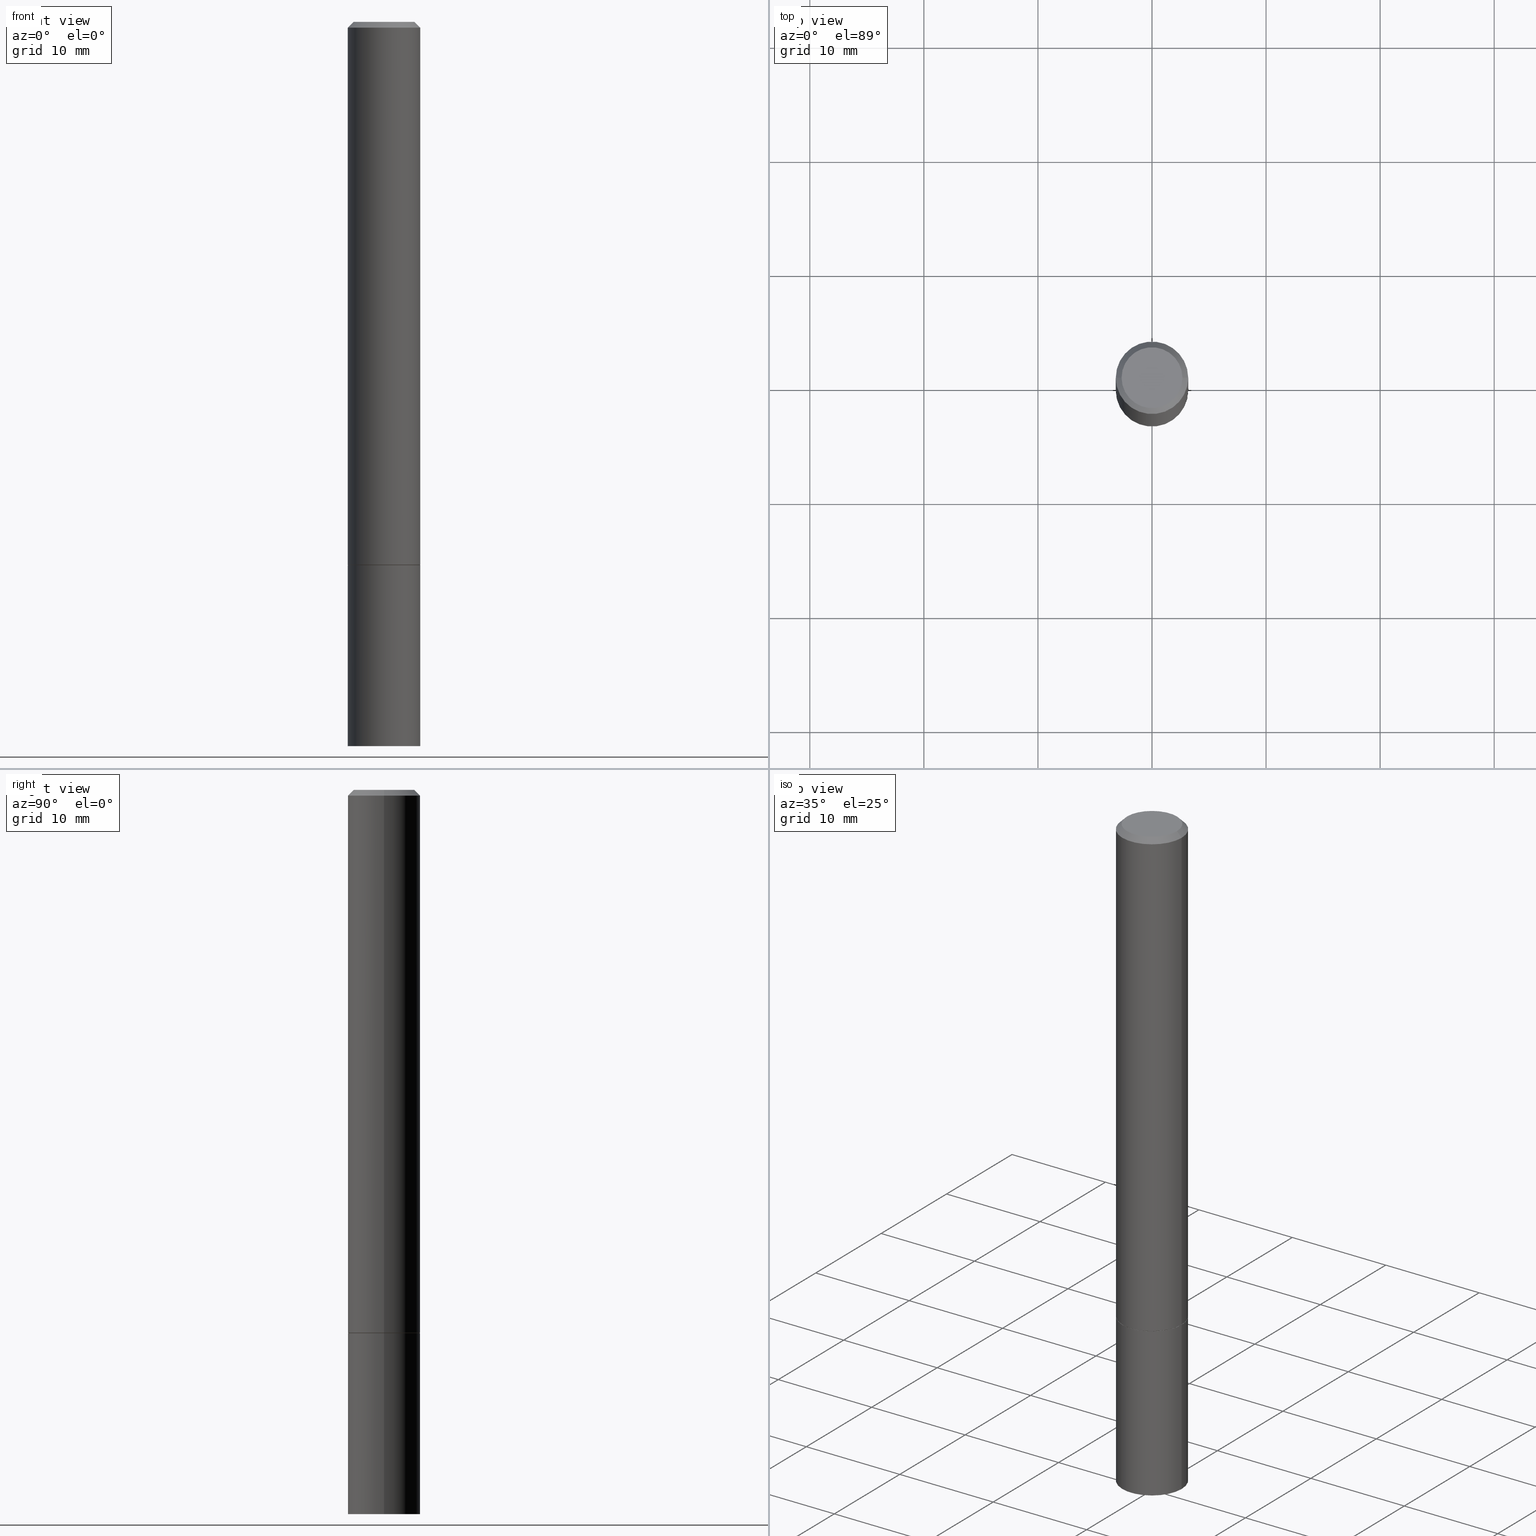
[diagram: canonical four-view strip — front | top / right | iso, engineering-drawing reading convention]
A machine part, canonical four-view strip (front | top / right | iso — engineering-drawing reading convention). The complete STEP part file that produces these views, byte-faithful:
ISO-10303-21;
HEADER;
FILE_DESCRIPTION (( 'STEP AP203' ),
    '1' );
FILE_NAME ('77101.STEP',
    '2024-02-29T13:53:45',
    ( '' ),
    ( '' ),
    'SwSTEP 2.0',
    'SolidWorks 2023',
    '' );
FILE_SCHEMA (( 'CONFIG_CONTROL_DESIGN' ));
ENDSEC;

DATA;
#1 = CC_DESIGN_DATE_AND_TIME_ASSIGNMENT ( #225, #251, ( #99 ) ) ;
#2 = CARTESIAN_POINT ( 'NONE',  ( 0.000000000000000000, 0.000000000000000000, 0.000000000000000000 ) ) ;
#3 = VECTOR ( 'NONE', #146, 39.37007874015748143 ) ;
#4 = CARTESIAN_POINT ( 'NONE',  ( 1.148236555768741665E-45, -1.639377487418492057E-31, -4.695363739110452099E-17 ) ) ;
#5 = CARTESIAN_POINT ( 'NONE',  ( 0.1250000000000000278, -9.601573681818648281E-15, -2.500000000000000000 ) ) ;
#6 = CYLINDRICAL_SURFACE ( 'NONE', #139, 0.1250000000000000278 ) ;
#7 = VECTOR ( 'NONE', #194, 39.37007874015748854 ) ;
#8 = CONICAL_SURFACE ( 'NONE', #178, 0.1249999999999998335, 0.7853981633974459475 ) ;
#9 = CARTESIAN_POINT ( 'NONE',  ( -0.1249999999999998335, 8.030407079339190545E-16, -0.02000000000000006287 ) ) ;
#10 = DIRECTION ( 'NONE',  ( 2.445468806185136597E-29, -3.491481338843145583E-15, -1.000000000000000000 ) ) ;
#11 = DIRECTION ( 'NONE',  ( -2.445468806185136597E-29, 3.491481338843145583E-15, 1.000000000000000000 ) ) ;
#12 = EDGE_CURVE ( 'NONE', #104, #329, #195, .T. ) ;
#13 = DATE_AND_TIME ( #244, #208 ) ;
#14 = ORIENTED_EDGE ( 'NONE', *, *, #162, .T. ) ;
#15 = DIRECTION ( 'NONE',  ( 1.000000000000000000, 0.000000000000000000, 0.000000000000000000 ) ) ;
#16 = ORIENTED_EDGE ( 'NONE', *, *, #135, .F. ) ;
#17 = EDGE_LOOP ( 'NONE', ( #213, #16 ) ) ;
#18 = AXIS2_PLACEMENT_3D ( 'NONE', #107, #227, #366 ) ;
#19 = PERSON_AND_ORGANIZATION ( #73, #241 ) ;
#20 = ORIENTED_EDGE ( 'NONE', *, *, #23, .T. ) ;
#21 =( CONVERSION_BASED_UNIT ( 'INCH', #180 ) LENGTH_UNIT ( ) NAMED_UNIT ( #342 ) );
#22 = CARTESIAN_POINT ( 'NONE',  ( 4.890937612370288923E-31, -6.982962677686312563E-17, -0.02000000000000006287 ) ) ;
#23 = EDGE_CURVE ( 'NONE', #329, #104, #171, .T. ) ;
#24 = AXIS2_PLACEMENT_3D ( 'NONE', #340, #56, #61 ) ;
#25 = CONICAL_SURFACE ( 'NONE', #48, 0.1240000000000000269, 0.7853981633974141952 ) ;
#26 = CARTESIAN_POINT ( 'NONE',  ( 8.728703347108292900E-16, 0.1249999999999934913, -1.875000000000000666 ) ) ;
#27 = ORIENTED_EDGE ( 'NONE', *, *, #354, .F. ) ;
#28 = DIRECTION ( 'NONE',  ( -2.445468806185136597E-29, 3.491481338843145583E-15, 1.000000000000000000 ) ) ;
#29 = CARTESIAN_POINT ( 'NONE',  ( 0.1249999999999998335, -9.273918764983033630E-16, -0.02000000000000006287 ) ) ;
#30 = LOCAL_TIME ( 8, 53, 45.00000000000000000, #273 ) ;
#31 = CARTESIAN_POINT ( 'NONE',  ( 0.1250000000000000278, -7.419397845041682046E-15, -1.875000000000000000 ) ) ;
#32 = DIRECTION ( 'NONE',  ( -1.000000000000000000, 6.982962677686266711E-15, 0.000000000000000000 ) ) ;
#33 = APPROVAL ( #338, 'UNSPECIFIED' ) ;
#34 = FACE_OUTER_BOUND ( 'NONE', #186, .T. ) ;
#35 = AXIS2_PLACEMENT_3D ( 'NONE', #151, #101, #15 ) ;
#36 = CC_DESIGN_APPROVAL ( #33, ( #99 ) ) ;
#37 = DIRECTION ( 'NONE',  ( -2.445468806185136597E-29, 3.491481338843145583E-15, 1.000000000000000000 ) ) ;
#38 = CARTESIAN_POINT ( 'NONE',  ( 0.1250000000000000278, -8.728703347107836346E-16, 6.095220969744921142E-30 ) ) ;
#39 = APPROVAL_ROLE ( '' ) ;
#40 = VERTEX_POINT ( 'NONE', #161 ) ;
#41 = VECTOR ( 'NONE', #333, 39.37007874015748143 ) ;
#42 = APPLICATION_PROTOCOL_DEFINITION ( 'international standard', 'config_control_design', 1994, #236 ) ;
#43 = ORIENTED_EDGE ( 'NONE', *, *, #248, .F. ) ;
#44 = APPROVAL_STATUS ( 'not_yet_approved' ) ;
#45 = EDGE_CURVE ( 'NONE', #124, #97, #358, .T. ) ;
#46 = EDGE_LOOP ( 'NONE', ( #257, #58, #207, #302 ) ) ;
#47 = AXIS2_PLACEMENT_3D ( 'NONE', #281, #28, #219 ) ;
#48 = AXIS2_PLACEMENT_3D ( 'NONE', #145, #64, #66 ) ;
#49 = DATE_AND_TIME ( #209, #328 ) ;
#50 = ORIENTED_EDGE ( 'NONE', *, *, #248, .T. ) ;
#51 = ADVANCED_FACE ( 'NONE', ( #137 ), #159, .F. ) ;
#52 = CARTESIAN_POINT ( 'NONE',  ( 4.582808542790945516E-29, -6.543036028992054911E-15, -1.874000000000000110 ) ) ;
#53 = MANIFOLD_SOLID_BREP ( 'Body-Move/Copy2[2]', #85 ) ;
#54 = APPROVAL_ROLE ( '' ) ;
#55 = MANIFOLD_SOLID_BREP ( 'Body-Move/Copy2[1]', #341 ) ;
#56 = DIRECTION ( 'NONE',  ( -2.445468806185136597E-29, 3.491481338843145583E-15, 1.000000000000000000 ) ) ;
#57 = PRODUCT_DEFINITION_FORMATION_WITH_SPECIFIED_SOURCE ( 'ANY', '', #229, .NOT_KNOWN. ) ;
#58 = ORIENTED_EDGE ( 'NONE', *, *, #74, .T. ) ;
#59 = EDGE_CURVE ( 'NONE', #97, #124, #200, .T. ) ;
#60 = DIRECTION ( 'NONE',  ( -2.445468806185136597E-29, 3.491481338843145583E-15, 1.000000000000000000 ) ) ;
#61 = DIRECTION ( 'NONE',  ( 1.000000000000000000, -6.982962677686269077E-15, 0.000000000000000000 ) ) ;
#62 = LINE ( 'NONE', #38, #347 ) ;
#63 = APPROVAL ( #44, 'UNSPECIFIED' ) ;
#64 = DIRECTION ( 'NONE',  ( -2.445468806185136597E-29, 3.491481338843145583E-15, 1.000000000000000000 ) ) ;
#65 = DIRECTION ( 'NONE',  ( 1.000000000000000000, -6.982962677686269077E-15, 0.000000000000000000 ) ) ;
#66 = DIRECTION ( 'NONE',  ( 1.000000000000000000, -6.982962677686269077E-15, 0.000000000000000000 ) ) ;
#67 = CIRCLE ( 'NONE', #214, 0.1250000000000000278 ) ;
#68 = CC_DESIGN_PERSON_AND_ORGANIZATION_ASSIGNMENT ( #71, #136, ( #99 ) ) ;
#69 = DIRECTION ( 'NONE',  ( 1.000000000000000000, -6.982962677686266711E-15, 4.876176775795935793E-29 ) ) ;
#70 = PERSON_AND_ORGANIZATION_ROLE ( 'design_supplier' ) ;
#71 = PERSON_AND_ORGANIZATION ( #73, #241 ) ;
#72 = EDGE_LOOP ( 'NONE', ( #20, #274 ) ) ;
#73 = PERSON ( 'UNSPECIFIED', 'UNSPECIFIED', 'UNSPECIFIED', ('UNSPECIFIED'), ('UNSPECIFIED'), ('UNSPECIFIED') ) ;
#74 = EDGE_CURVE ( 'NONE', #177, #182, #297, .T. ) ;
#75 = ORIENTED_EDGE ( 'NONE', *, *, #203, .T. ) ;
#76 = DIRECTION ( 'NONE',  ( -1.000000000000000000, 6.982962677686266711E-15, 0.000000000000000000 ) ) ;
#77 = ORIENTED_EDGE ( 'NONE', *, *, #140, .F. ) ;
#78 = ORIENTED_EDGE ( 'NONE', *, *, #59, .T. ) ;
#79 = ADVANCED_FACE ( 'NONE', ( #189 ), #309, .F. ) ;
#80 = CIRCLE ( 'NONE', #24, 0.1250000000000000278 ) ;
#81 = APPROVAL_PERSON_ORGANIZATION ( #217, #33, #54 ) ;
#82 = ORIENTED_EDGE ( 'NONE', *, *, #239, .F. ) ;
#83 = CARTESIAN_POINT ( 'NONE',  ( -0.1240000000000000269, -5.660156063640151292E-15, -1.875000000000000000 ) ) ;
#84 = ORIENTED_EDGE ( 'NONE', *, *, #344, .F. ) ;
#85 = CLOSED_SHELL ( 'NONE', ( #221, #259, #320, #359, #349, #299, #51, #292 ) ) ;
#86 = CARTESIAN_POINT ( 'NONE',  ( 0.1049999999999998990, -8.238720831321568755E-16, -4.695363739109907908E-17 ) ) ;
#87 = DIRECTION ( 'NONE',  ( 1.000000000000000000, -6.982962677686269077E-15, 0.000000000000000000 ) ) ;
#88 = ORIENTED_EDGE ( 'NONE', *, *, #74, .F. ) ;
#89 = DIRECTION ( 'NONE',  ( 1.000000000000000000, -6.982962677686269077E-15, 0.000000000000000000 ) ) ;
#90 = FACE_OUTER_BOUND ( 'NONE', #72, .T. ) ;
#91 = LINE ( 'NONE', #118, #266 ) ;
#92 = EDGE_CURVE ( 'NONE', #40, #356, #312, .T. ) ;
#93 = CARTESIAN_POINT ( 'NONE',  ( 0.000000000000000000, 0.000000000000000000, 0.000000000000000000 ) ) ;
#94 = APPROVAL_DATE_TIME ( #49, #216 ) ;
#95 = CC_DESIGN_PERSON_AND_ORGANIZATION_ASSIGNMENT ( #240, #70, ( #57 ) ) ;
#96 = APPROVAL_ROLE ( '' ) ;
#97 = VERTEX_POINT ( 'NONE', #308 ) ;
#98 = AXIS2_PLACEMENT_3D ( 'NONE', #2, #134, #111 ) ;
#99 = SECURITY_CLASSIFICATION ( '', '', #147 ) ;
#100 = ORIENTED_EDGE ( 'NONE', *, *, #272, .T. ) ;
#101 = DIRECTION ( 'NONE',  ( 0.000000000000000000, 0.000000000000000000, 1.000000000000000000 ) ) ;
#102 = ORIENTED_EDGE ( 'NONE', *, *, #310, .T. ) ;
#103 = CALENDAR_DATE ( 2024, 29, 2 ) ;
#104 = VERTEX_POINT ( 'NONE', #86 ) ;
#105 = CYLINDRICAL_SURFACE ( 'NONE', #98, 0.1250000000000000278 ) ;
#106 = CALENDAR_DATE ( 2024, 29, 2 ) ;
#107 = CARTESIAN_POINT ( 'NONE',  ( 4.585254011597131119E-29, -6.546527510330898707E-15, -1.875000000000000000 ) ) ;
#108 = DIRECTION ( 'NONE',  ( -1.000000000000000000, 6.982962677686265922E-15, -4.876176775795935793E-29 ) ) ;
#109 = CONICAL_SURFACE ( 'NONE', #322, 0.1240000000000000269, 0.7853981633974141952 ) ;
#110 = SHAPE_DEFINITION_REPRESENTATION ( #270, #197 ) ;
#111 = DIRECTION ( 'NONE',  ( 1.000000000000000000, -6.982962677686267499E-15, 4.876176775795935793E-29 ) ) ;
#112 = CARTESIAN_POINT ( 'NONE',  ( 1.148236555768741665E-45, -1.639377487418492057E-31, -4.695363739110452099E-17 ) ) ;
#113 = CARTESIAN_POINT ( 'NONE',  ( 4.585254011597131119E-29, -6.546527510330898707E-15, -1.875000000000000000 ) ) ;
#114 = CARTESIAN_POINT ( 'NONE',  ( -0.1049999999999998990, 7.681258945454880957E-16, -4.695363739110977184E-17 ) ) ;
#115 = AXIS2_PLACEMENT_3D ( 'NONE', #22, #132, #337 ) ;
#116 = CARTESIAN_POINT ( 'NONE',  ( 0.1249999999999998335, -9.273918764983033630E-16, -0.02000000000000006287 ) ) ;
#117 = FACE_OUTER_BOUND ( 'NONE', #238, .T. ) ;
#118 = CARTESIAN_POINT ( 'NONE',  ( -0.1249999999999999306, 8.881784197001247393E-16, -6.148668862818628724E-30 ) ) ;
#119 = CIRCLE ( 'NONE', #357, 0.1250000000000000278 ) ;
#120 = ORIENTED_EDGE ( 'NONE', *, *, #92, .T. ) ;
#121 = EDGE_CURVE ( 'NONE', #242, #40, #80, .T. ) ;
#122 = ORIENTED_EDGE ( 'NONE', *, *, #135, .T. ) ;
#123 = APPROVAL_DATE_TIME ( #296, #63 ) ;
#124 = VERTEX_POINT ( 'NONE', #138 ) ;
#125 = CC_DESIGN_APPROVAL ( #216, ( #126 ) ) ;
#126 = PRODUCT_DEFINITION ( 'UNKNOWN', '', #57, #185 ) ;
#127 = APPLICATION_PROTOCOL_DEFINITION ( 'international standard', 'config_control_design', 1994, #261 ) ;
#128 = ORIENTED_EDGE ( 'NONE', *, *, #253, .F. ) ;
#129 = CARTESIAN_POINT ( 'NONE',  ( 0.1249999999999999306, -8.728703347107828458E-16, 6.095220969744916238E-30 ) ) ;
#130 = ORIENTED_EDGE ( 'NONE', *, *, #310, .F. ) ;
#131 = COORDINATED_UNIVERSAL_TIME_OFFSET ( 5, 0, .BEHIND. ) ;
#132 = DIRECTION ( 'NONE',  ( -2.445468806185136597E-29, 3.491481338843145583E-15, 1.000000000000000000 ) ) ;
#133 = AXIS2_PLACEMENT_3D ( 'NONE', #315, #353, #196 ) ;
#134 = DIRECTION ( 'NONE',  ( -2.445468806185136597E-29, 3.491481338843145583E-15, 1.000000000000000000 ) ) ;
#135 = EDGE_CURVE ( 'NONE', #40, #242, #287, .T. ) ;
#136 = PERSON_AND_ORGANIZATION_ROLE ( 'classification_officer' ) ;
#137 = FACE_OUTER_BOUND ( 'NONE', #268, .T. ) ;
#138 = CARTESIAN_POINT ( 'NONE',  ( 0.1250000000000000278, -7.415906363702839039E-15, -1.874000000000000110 ) ) ;
#139 = AXIS2_PLACEMENT_3D ( 'NONE', #265, #169, #264 ) ;
#140 = EDGE_CURVE ( 'NONE', #336, #181, #311, .T. ) ;
#141 = CARTESIAN_POINT ( 'NONE',  ( 8.728703347108445741E-16, 0.1249999999999913125, -2.500000000000000444 ) ) ;
#142 = LINE ( 'NONE', #290, #3 ) ;
#143 = DIRECTION ( 'NONE',  ( -2.445468806185136597E-29, 3.491481338843145583E-15, 1.000000000000000000 ) ) ;
#144 = FACE_OUTER_BOUND ( 'NONE', #271, .T. ) ;
#145 = CARTESIAN_POINT ( 'NONE',  ( 4.585254011597131119E-29, -6.546527510330898707E-15, -1.875000000000000000 ) ) ;
#146 = DIRECTION ( 'NONE',  ( -0.7071067811865459074, 2.468850131082239706E-15, -0.7071067811865492381 ) ) ;
#147 = SECURITY_CLASSIFICATION_LEVEL ( 'unclassified' ) ;
#148 = VECTOR ( 'NONE', #222, 39.37007874015748143 ) ;
#149 = ORIENTED_EDGE ( 'NONE', *, *, #210, .F. ) ;
#150 = APPROVAL_PERSON_ORGANIZATION ( #298, #216, #96 ) ;
#151 = CARTESIAN_POINT ( 'NONE',  ( 0.000000000000000000, 0.000000000000000000, 0.000000000000000000 ) ) ;
#152 = EDGE_LOOP ( 'NONE', ( #100, #75, #276, #82 ) ) ;
#153 = CC_DESIGN_DATE_AND_TIME_ASSIGNMENT ( #13, #362, ( #126 ) ) ;
#154 = DIRECTION ( 'NONE',  ( 2.445468806185136597E-29, -3.491481338843145583E-15, -1.000000000000000000 ) ) ;
#155 = ORIENTED_EDGE ( 'NONE', *, *, #354, .T. ) ;
#156 = VECTOR ( 'NONE', #174, 39.37007874015748854 ) ;
#157 = PERSON_AND_ORGANIZATION ( #73, #241 ) ;
#158 = ORIENTED_EDGE ( 'NONE', *, *, #92, .F. ) ;
#159 = PLANE ( 'NONE',  #250 ) ;
#160 = DATE_AND_TIME ( #106, #202 ) ;
#161 = CARTESIAN_POINT ( 'NONE',  ( -0.1250000000000000278, -6.749437009019256592E-15, -2.500000000000000000 ) ) ;
#162 = EDGE_CURVE ( 'NONE', #205, #356, #119, .T. ) ;
#163 = DIRECTION ( 'NONE',  ( 1.000000000000000000, -6.982962677686269077E-15, 0.000000000000000000 ) ) ;
#164 = APPROVAL_DATE_TIME ( #160, #33 ) ;
#165 = DIRECTION ( 'NONE',  ( 1.000000000000000000, -6.982962677686266711E-15, 4.874400871621243260E-29 ) ) ;
#166 = DIRECTION ( 'NONE',  ( 2.438088387897960049E-29, -3.491481338843145188E-15, -1.000000000000000000 ) ) ;
#167 = DIRECTION ( 'NONE',  ( -2.445468806185136877E-29, 3.491481338843145188E-15, 1.000000000000000000 ) ) ;
#168 = CARTESIAN_POINT ( 'NONE',  ( 0.1240000000000000269, -7.412414882363996032E-15, -1.875000000000000000 ) ) ;
#169 = DIRECTION ( 'NONE',  ( -2.445468806185136597E-29, 3.491481338843145583E-15, 1.000000000000000000 ) ) ;
#170 = ADVANCED_FACE ( 'NONE', ( #249 ), #105, .T. ) ;
#171 = CIRCLE ( 'NONE', #183, 0.1049999999999998990 ) ;
#172 = DIRECTION ( 'NONE',  ( -1.000000000000000000, 6.982962677686265922E-15, -4.876176775795935793E-29 ) ) ;
#173 = AXIS2_PLACEMENT_3D ( 'NONE', #269, #154, #76 ) ;
#174 = DIRECTION ( 'NONE',  ( 0.7071067811865232589, -2.468850131082003836E-15, 0.7071067811865715536 ) ) ;
#175 =( NAMED_UNIT ( * ) PLANE_ANGLE_UNIT ( ) SI_UNIT ( $, .RADIAN. ) );
#176 = PERSON_AND_ORGANIZATION_ROLE ( 'creator' ) ;
#177 = VERTEX_POINT ( 'NONE', #83 ) ;
#178 = AXIS2_PLACEMENT_3D ( 'NONE', #289, #10, #32 ) ;
#179 = PERSON_AND_ORGANIZATION_ROLE ( 'design_owner' ) ;
#180 = LENGTH_MEASURE_WITH_UNIT ( LENGTH_MEASURE( 0.02539999999999999897 ), #235 );
#181 = VERTEX_POINT ( 'NONE', #29 ) ;
#182 = VERTEX_POINT ( 'NONE', #226 ) ;
#183 = AXIS2_PLACEMENT_3D ( 'NONE', #112, #60, #165 ) ;
#184 = LOCAL_TIME ( 8, 53, 45.00000000000000000, #131 ) ;
#185 = DESIGN_CONTEXT ( 'detailed design', #261, 'design' ) ;
#186 = EDGE_LOOP ( 'NONE', ( #158, #122, #102, #149 ) ) ;
#187 = CC_DESIGN_PERSON_AND_ORGANIZATION_ASSIGNMENT ( #330, #176, ( #126 ) ) ;
#188 = DIRECTION ( 'NONE',  ( -2.445468806185136597E-29, 3.491481338843145583E-15, 1.000000000000000000 ) ) ;
#189 = FACE_OUTER_BOUND ( 'NONE', #325, .T. ) ;
#190 = AXIS2_PLACEMENT_3D ( 'NONE', #26, #166, #108 ) ;
#191 = DIRECTION ( 'NONE',  ( 1.000000000000000000, -6.982962677686265922E-15, 4.876176775795935793E-29 ) ) ;
#192 = ADVANCED_FACE ( 'NONE', ( #343 ), #193, .T. ) ;
#193 = PLANE ( 'NONE',  #223 ) ;
#194 = DIRECTION ( 'NONE',  ( -0.7071067811865232589, 7.493145998870265808E-15, 0.7071067811865715536 ) ) ;
#195 = CIRCLE ( 'NONE', #316, 0.1049999999999998990 ) ;
#196 = DIRECTION ( 'NONE',  ( -1.000000000000000000, 6.982962677686265922E-15, -4.876176775795935793E-29 ) ) ;
#197 = ADVANCED_BREP_SHAPE_REPRESENTATION ( '77101', ( #55, #53, #35 ), #293 ) ;
#198 = FACE_OUTER_BOUND ( 'NONE', #152, .T. ) ;
#199 = CARTESIAN_POINT ( 'NONE',  ( 4.890937612370288923E-31, -6.982962677686312563E-17, -0.02000000000000006287 ) ) ;
#200 = CIRCLE ( 'NONE', #47, 0.1250000000000000278 ) ;
#201 = DIRECTION ( 'NONE',  ( -2.445468806185136597E-29, 3.491481338843145583E-15, 1.000000000000000000 ) ) ;
#202 = LOCAL_TIME ( 8, 53, 45.00000000000000000, #307 ) ;
#203 = EDGE_CURVE ( 'NONE', #177, #97, #346, .T. ) ;
#204 = PERSON_AND_ORGANIZATION_ROLE ( 'creator' ) ;
#205 = VERTEX_POINT ( 'NONE', #31 ) ;
#206 = APPROVAL_STATUS ( 'not_yet_approved' ) ;
#207 = ORIENTED_EDGE ( 'NONE', *, *, #239, .T. ) ;
#208 = LOCAL_TIME ( 8, 53, 45.00000000000000000, #304 ) ;
#209 = CALENDAR_DATE ( 2024, 29, 2 ) ;
#210 = EDGE_CURVE ( 'NONE', #356, #205, #67, .T. ) ;
#211 = EDGE_LOOP ( 'NONE', ( #84, #300, #50, #365 ) ) ;
#212 = ORIENTED_EDGE ( 'NONE', *, *, #210, .T. ) ;
#213 = ORIENTED_EDGE ( 'NONE', *, *, #121, .F. ) ;
#214 = AXIS2_PLACEMENT_3D ( 'NONE', #291, #319, #348 ) ;
#215 = CC_DESIGN_APPROVAL ( #63, ( #57 ) ) ;
#216 = APPROVAL ( #206, 'UNSPECIFIED' ) ;
#217 = PERSON_AND_ORGANIZATION ( #73, #241 ) ;
#218 = DIRECTION ( 'NONE',  ( 2.438088387897960049E-29, -3.491481338843145188E-15, -1.000000000000000000 ) ) ;
#219 = DIRECTION ( 'NONE',  ( 1.000000000000000000, -6.982962677686269077E-15, 0.000000000000000000 ) ) ;
#220 = UNCERTAINTY_MEASURE_WITH_UNIT (LENGTH_MEASURE( 1.000000000000000082E-05 ), #21, 'distance_accuracy_value', 'NONE');
#221 = ADVANCED_FACE ( 'NONE', ( #198 ), #109, .T. ) ;
#222 = DIRECTION ( 'NONE',  ( -2.445468806185136877E-29, 3.491481338843145188E-15, 1.000000000000000000 ) ) ;
#223 = AXIS2_PLACEMENT_3D ( 'NONE', #141, #218, #172 ) ;
#224 = AXIS2_PLACEMENT_3D ( 'NONE', #93, #201, #69 ) ;
#225 = DATE_AND_TIME ( #103, #184 ) ;
#226 = CARTESIAN_POINT ( 'NONE',  ( 0.1240000000000000269, -7.412414882363996032E-15, -1.875000000000000000 ) ) ;
#227 = DIRECTION ( 'NONE',  ( -2.445468806185136597E-29, 3.491481338843145583E-15, 1.000000000000000000 ) ) ;
#228 = CARTESIAN_POINT ( 'NONE',  ( -0.1240000000000000269, -5.665454517988373694E-15, -1.875000000000000000 ) ) ;
#229 = PRODUCT ( '77101', '77101', '', ( #275 ) ) ;
#230 = CIRCLE ( 'NONE', #282, 0.1249999999999998335 ) ;
#231 = CYLINDRICAL_SURFACE ( 'NONE', #360, 0.1249999999999999306 ) ;
#232 = DIRECTION ( 'NONE',  ( 0.7071067811865459074, -7.319954787623251312E-15, -0.7071067811865492381 ) ) ;
#233 = CYLINDRICAL_SURFACE ( 'NONE', #224, 0.1249999999999999306 ) ;
#234 = PLANE ( 'NONE',  #133 ) ;
#235 =( LENGTH_UNIT ( ) NAMED_UNIT ( * ) SI_UNIT ( $, .METRE. ) );
#236 = APPLICATION_CONTEXT ( 'configuration controlled 3d designs of mechanical parts and assemblies' ) ;
#237 = CARTESIAN_POINT ( 'NONE',  ( -0.1250000000000000278, -6.749437009019256592E-15, -1.875000000000000000 ) ) ;
#238 = EDGE_LOOP ( 'NONE', ( #128, #78, #155, #77 ) ) ;
#239 = EDGE_CURVE ( 'NONE', #182, #124, #321, .T. ) ;
#240 = PERSON_AND_ORGANIZATION ( #73, #241 ) ;
#241 = ORGANIZATION ( 'UNSPECIFIED', 'UNSPECIFIED', '' ) ;
#242 = VERTEX_POINT ( 'NONE', #5 ) ;
#243 = AXIS2_PLACEMENT_3D ( 'NONE', #113, #11, #65 ) ;
#244 = CALENDAR_DATE ( 2024, 29, 2 ) ;
#245 = ORIENTED_EDGE ( 'NONE', *, *, #253, .T. ) ;
#246 = FACE_OUTER_BOUND ( 'NONE', #211, .T. ) ;
#247 = ORIENTED_EDGE ( 'NONE', *, *, #272, .F. ) ;
#248 = EDGE_CURVE ( 'NONE', #329, #336, #142, .T. ) ;
#249 = FACE_OUTER_BOUND ( 'NONE', #331, .T. ) ;
#250 = AXIS2_PLACEMENT_3D ( 'NONE', #339, #254, #191 ) ;
#251 = DATE_TIME_ROLE ( 'classification_date' ) ;
#252 = CARTESIAN_POINT ( 'NONE',  ( -0.1250000000000000278, 8.881784197001254296E-16, -6.148668862818634329E-30 ) ) ;
#253 = EDGE_CURVE ( 'NONE', #97, #336, #91, .T. ) ;
#254 = DIRECTION ( 'NONE',  ( -2.438088387897960049E-29, 3.491481338843145188E-15, 1.000000000000000000 ) ) ;
#255 = DIRECTION ( 'NONE',  ( -2.445468806185136597E-29, 3.491481338843145583E-15, 1.000000000000000000 ) ) ;
#256 = CONICAL_SURFACE ( 'NONE', #173, 0.1249999999999998335, 0.7853981633974459475 ) ;
#257 = ORIENTED_EDGE ( 'NONE', *, *, #203, .F. ) ;
#258 = FACE_OUTER_BOUND ( 'NONE', #306, .T. ) ;
#259 = ADVANCED_FACE ( 'NONE', ( #258 ), #231, .T. ) ;
#260 = CARTESIAN_POINT ( 'NONE',  ( 4.585254011597131119E-29, -6.546527510330898707E-15, -1.875000000000000000 ) ) ;
#261 = APPLICATION_CONTEXT ( 'configuration controlled 3d designs of mechanical parts and assemblies' ) ;
#262 = APPROVAL_PERSON_ORGANIZATION ( #157, #63, #39 ) ;
#263 = DIRECTION ( 'NONE',  ( 1.000000000000000000, -6.982962677686266711E-15, 0.000000000000000000 ) ) ;
#264 = DIRECTION ( 'NONE',  ( 1.000000000000000000, -6.982962677686267499E-15, 4.876176775795935793E-29 ) ) ;
#265 = CARTESIAN_POINT ( 'NONE',  ( 0.000000000000000000, 0.000000000000000000, 0.000000000000000000 ) ) ;
#266 = VECTOR ( 'NONE', #323, 39.37007874015748143 ) ;
#267 = COORDINATED_UNIVERSAL_TIME_OFFSET ( 5, 0, .BEHIND. ) ;
#268 = EDGE_LOOP ( 'NONE', ( #247, #88 ) ) ;
#269 = CARTESIAN_POINT ( 'NONE',  ( 4.890937612370288923E-31, -6.982962677686312563E-17, -0.02000000000000006287 ) ) ;
#270 = PRODUCT_DEFINITION_SHAPE ( 'NONE', 'NONE',  #126 ) ;
#271 = EDGE_LOOP ( 'NONE', ( #334, #355, #279, #43 ) ) ;
#272 = EDGE_CURVE ( 'NONE', #182, #177, #317, .T. ) ;
#273 = COORDINATED_UNIVERSAL_TIME_OFFSET ( 5, 0, .BEHIND. ) ;
#274 = ORIENTED_EDGE ( 'NONE', *, *, #12, .T. ) ;
#275 = MECHANICAL_CONTEXT ( 'NONE', #236, 'mechanical' ) ;
#276 = ORIENTED_EDGE ( 'NONE', *, *, #45, .F. ) ;
#277 = CC_DESIGN_PERSON_AND_ORGANIZATION_ASSIGNMENT ( #19, #179, ( #229 ) ) ;
#278 = PERSON_AND_ORGANIZATION ( #73, #241 ) ;
#279 = ORIENTED_EDGE ( 'NONE', *, *, #332, .T. ) ;
#280 = DIRECTION ( 'NONE',  ( 1.000000000000000000, -6.982962677686269077E-15, 0.000000000000000000 ) ) ;
#281 = CARTESIAN_POINT ( 'NONE',  ( 4.582808542790945516E-29, -6.543036028992054911E-15, -1.874000000000000110 ) ) ;
#282 = AXIS2_PLACEMENT_3D ( 'NONE', #199, #143, #263 ) ;
#283 = ORIENTED_EDGE ( 'NONE', *, *, #162, .F. ) ;
#284 = ADVANCED_FACE ( 'NONE', ( #34 ), #6, .T. ) ;
#285 = DIRECTION ( 'NONE',  ( -2.445468806185136597E-29, 3.491481338843145583E-15, 1.000000000000000000 ) ) ;
#286 = CARTESIAN_POINT ( 'NONE',  ( 4.585254011597131119E-29, -6.546527510330898707E-15, -1.875000000000000000 ) ) ;
#287 = CIRCLE ( 'NONE', #335, 0.1250000000000000278 ) ;
#288 = CC_DESIGN_SECURITY_CLASSIFICATION ( #99, ( #57 ) ) ;
#289 = CARTESIAN_POINT ( 'NONE',  ( 4.890937612370288923E-31, -6.982962677686312563E-17, -0.02000000000000006287 ) ) ;
#290 = CARTESIAN_POINT ( 'NONE',  ( -0.1249999999999998335, 8.030407079339190545E-16, -0.02000000000000006287 ) ) ;
#291 = CARTESIAN_POINT ( 'NONE',  ( 4.585254011597131119E-29, -6.546527510330898707E-15, -1.875000000000000000 ) ) ;
#292 = ADVANCED_FACE ( 'NONE', ( #90 ), #234, .F. ) ;
#293 =( GEOMETRIC_REPRESENTATION_CONTEXT ( 3 ) GLOBAL_UNCERTAINTY_ASSIGNED_CONTEXT ( ( #220 ) ) GLOBAL_UNIT_ASSIGNED_CONTEXT ( ( #21, #175, #327 ) ) REPRESENTATION_CONTEXT ( 'NONE', 'WORKASPACE' ) );
#294 = DIRECTION ( 'NONE',  ( -2.445468806185136597E-29, 3.491481338843145583E-15, 1.000000000000000000 ) ) ;
#295 = CARTESIAN_POINT ( 'NONE',  ( 0.000000000000000000, 0.000000000000000000, 0.000000000000000000 ) ) ;
#296 = DATE_AND_TIME ( #324, #30 ) ;
#297 = CIRCLE ( 'NONE', #18, 0.1240000000000000269 ) ;
#298 = PERSON_AND_ORGANIZATION ( #73, #241 ) ;
#299 = ADVANCED_FACE ( 'NONE', ( #318 ), #25, .T. ) ;
#300 = ORIENTED_EDGE ( 'NONE', *, *, #23, .F. ) ;
#301 = LINE ( 'NONE', #129, #41 ) ;
#302 = ORIENTED_EDGE ( 'NONE', *, *, #59, .F. ) ;
#303 = PRODUCT_RELATED_PRODUCT_CATEGORY ( 'detail', '', ( #229 ) ) ;
#304 = COORDINATED_UNIVERSAL_TIME_OFFSET ( 5, 0, .BEHIND. ) ;
#305 = ORIENTED_EDGE ( 'NONE', *, *, #45, .T. ) ;
#306 = EDGE_LOOP ( 'NONE', ( #305, #245, #361, #27 ) ) ;
#307 = COORDINATED_UNIVERSAL_TIME_OFFSET ( 5, 0, .BEHIND. ) ;
#308 = CARTESIAN_POINT ( 'NONE',  ( -0.1250000000000000555, -2.418254408184330322E-15, -1.874000000000000110 ) ) ;
#309 = PLANE ( 'NONE',  #190 ) ;
#310 = EDGE_CURVE ( 'NONE', #242, #205, #62, .T. ) ;
#311 = CIRCLE ( 'NONE', #115, 0.1249999999999998335 ) ;
#312 = LINE ( 'NONE', #252, #148 ) ;
#313 = DIRECTION ( 'NONE',  ( -2.445468806185136597E-29, 3.491481338843145583E-15, 1.000000000000000000 ) ) ;
#314 = CC_DESIGN_PERSON_AND_ORGANIZATION_ASSIGNMENT ( #278, #204, ( #57 ) ) ;
#315 = CARTESIAN_POINT ( 'NONE',  ( 7.332110811570573341E-16, 0.1049999999999998990, -3.900823592740821971E-16 ) ) ;
#316 = AXIS2_PLACEMENT_3D ( 'NONE', #4, #313, #364 ) ;
#317 = CIRCLE ( 'NONE', #243, 0.1240000000000000269 ) ;
#318 = FACE_OUTER_BOUND ( 'NONE', #46, .T. ) ;
#319 = DIRECTION ( 'NONE',  ( -2.445468806185136597E-29, 3.491481338843145583E-15, 1.000000000000000000 ) ) ;
#320 = ADVANCED_FACE ( 'NONE', ( #144 ), #8, .T. ) ;
#321 = LINE ( 'NONE', #168, #156 ) ;
#322 = AXIS2_PLACEMENT_3D ( 'NONE', #260, #294, #89 ) ;
#323 = DIRECTION ( 'NONE',  ( -2.445468806185136877E-29, 3.491481338843145188E-15, 1.000000000000000000 ) ) ;
#324 = CALENDAR_DATE ( 2024, 29, 2 ) ;
#325 = EDGE_LOOP ( 'NONE', ( #14, #212 ) ) ;
#326 = AXIS2_PLACEMENT_3D ( 'NONE', #52, #285, #163 ) ;
#327 =( NAMED_UNIT ( * ) SI_UNIT ( $, .STERADIAN. ) SOLID_ANGLE_UNIT ( ) );
#328 = LOCAL_TIME ( 8, 53, 45.00000000000000000, #267 ) ;
#329 = VERTEX_POINT ( 'NONE', #114 ) ;
#330 = PERSON_AND_ORGANIZATION ( #73, #241 ) ;
#331 = EDGE_LOOP ( 'NONE', ( #363, #120, #283, #130 ) ) ;
#332 = EDGE_CURVE ( 'NONE', #181, #336, #230, .T. ) ;
#333 = DIRECTION ( 'NONE',  ( -2.445468806185136877E-29, 3.491481338843145188E-15, 1.000000000000000000 ) ) ;
#334 = ORIENTED_EDGE ( 'NONE', *, *, #12, .F. ) ;
#335 = AXIS2_PLACEMENT_3D ( 'NONE', #345, #188, #280 ) ;
#336 = VERTEX_POINT ( 'NONE', #9 ) ;
#337 = DIRECTION ( 'NONE',  ( 1.000000000000000000, -6.982962677686266711E-15, 0.000000000000000000 ) ) ;
#338 = APPROVAL_STATUS ( 'not_yet_approved' ) ;
#339 = CARTESIAN_POINT ( 'NONE',  ( 4.585254011597131119E-29, -6.546527510330898707E-15, -1.875000000000000000 ) ) ;
#340 = CARTESIAN_POINT ( 'NONE',  ( 6.113672015462842613E-29, -8.728703347107864943E-15, -2.500000000000000000 ) ) ;
#341 = CLOSED_SHELL ( 'NONE', ( #170, #192, #79, #284 ) ) ;
#342 = DIMENSIONAL_EXPONENTS ( 1.000000000000000000, 0.000000000000000000, 0.000000000000000000, 0.000000000000000000, 0.000000000000000000, 0.000000000000000000, 0.000000000000000000 ) ;
#343 = FACE_OUTER_BOUND ( 'NONE', #17, .T. ) ;
#344 = EDGE_CURVE ( 'NONE', #104, #181, #350, .T. ) ;
#345 = CARTESIAN_POINT ( 'NONE',  ( 6.113672015462842613E-29, -8.728703347107864943E-15, -2.500000000000000000 ) ) ;
#346 = LINE ( 'NONE', #228, #7 ) ;
#347 = VECTOR ( 'NONE', #167, 39.37007874015748143 ) ;
#348 = DIRECTION ( 'NONE',  ( 1.000000000000000000, -6.982962677686269077E-15, 0.000000000000000000 ) ) ;
#349 = ADVANCED_FACE ( 'NONE', ( #117 ), #233, .T. ) ;
#350 = LINE ( 'NONE', #116, #352 ) ;
#351 = DIRECTION ( 'NONE',  ( 1.000000000000000000, -6.982962677686266711E-15, 4.876176775795935793E-29 ) ) ;
#352 = VECTOR ( 'NONE', #232, 39.37007874015748143 ) ;
#353 = DIRECTION ( 'NONE',  ( 2.438088387897960049E-29, -3.491481338843145188E-15, -1.000000000000000000 ) ) ;
#354 = EDGE_CURVE ( 'NONE', #124, #181, #301, .T. ) ;
#355 = ORIENTED_EDGE ( 'NONE', *, *, #344, .T. ) ;
#356 = VERTEX_POINT ( 'NONE', #237 ) ;
#357 = AXIS2_PLACEMENT_3D ( 'NONE', #286, #255, #87 ) ;
#358 = CIRCLE ( 'NONE', #326, 0.1250000000000000278 ) ;
#359 = ADVANCED_FACE ( 'NONE', ( #246 ), #256, .T. ) ;
#360 = AXIS2_PLACEMENT_3D ( 'NONE', #295, #37, #351 ) ;
#361 = ORIENTED_EDGE ( 'NONE', *, *, #332, .F. ) ;
#362 = DATE_TIME_ROLE ( 'creation_date' ) ;
#363 = ORIENTED_EDGE ( 'NONE', *, *, #121, .T. ) ;
#364 = DIRECTION ( 'NONE',  ( 1.000000000000000000, -6.982962677686266711E-15, 4.874400871621243260E-29 ) ) ;
#365 = ORIENTED_EDGE ( 'NONE', *, *, #140, .T. ) ;
#366 = DIRECTION ( 'NONE',  ( 1.000000000000000000, -6.982962677686269077E-15, 0.000000000000000000 ) ) ;
ENDSEC;
END-ISO-10303-21;
